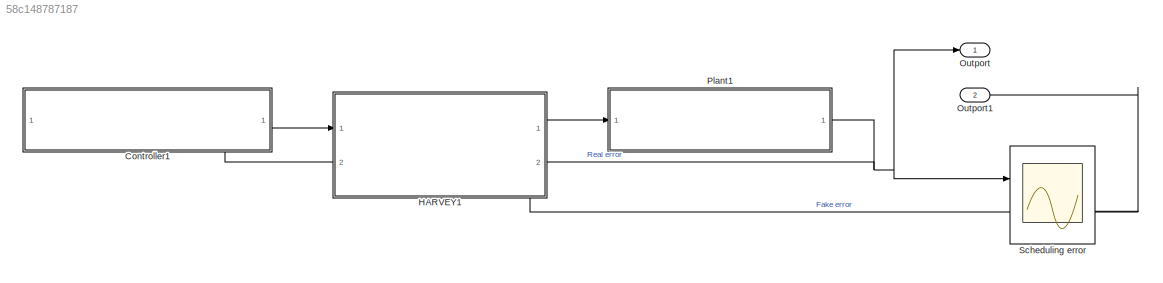
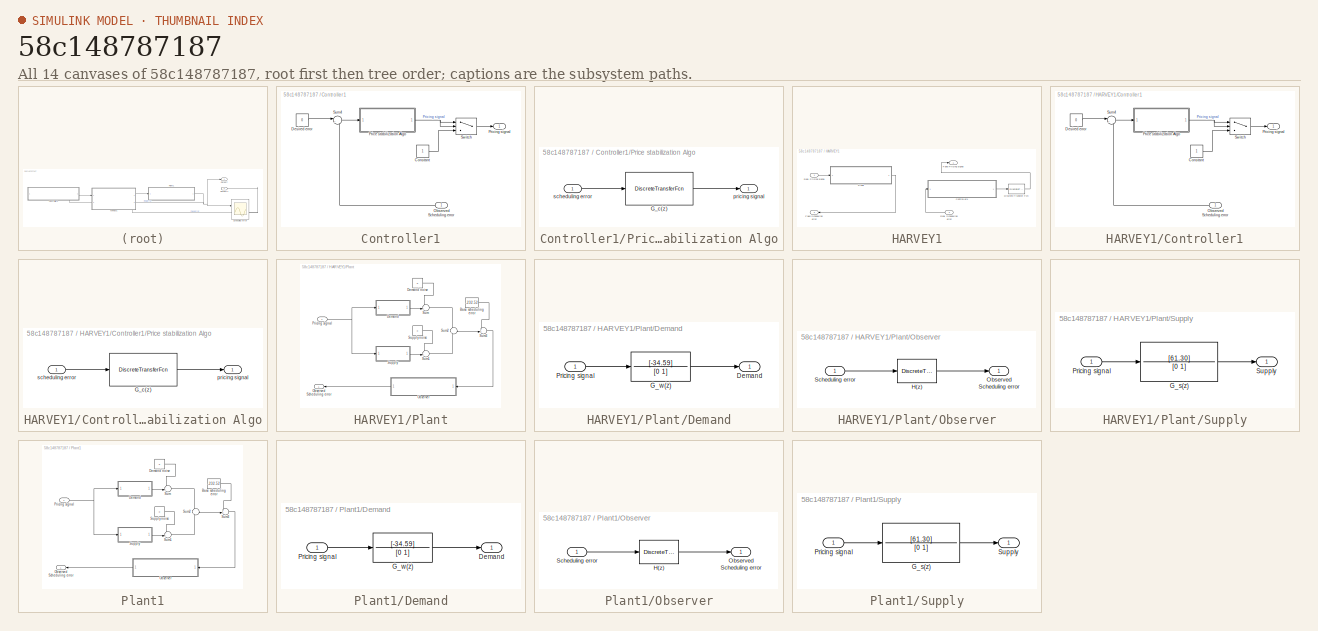
[diagram: thumbnail index - all 14 canvases of the model, root first then tree order]
MODEL slx_58c148787187
KIND model
CONFIG AbsTol = auto
CONFIG EnableMultiTasking = off
CONFIG FixedStep = 0.001
CONFIG MaxStep = auto
CONFIG MinStep = auto
CONFIG RelTol = 1e-3
CONFIG SampleTimeConstraint = Unconstrained
CONFIG SolverName = ode5
CONFIG StartTime = 0.0
CONFIG StopTime = 1
BLOCK [SubSystem] Controller1
  Ports = [1, 1]
  RequestExecContextInheritance = off
BLOCK [Constant] Controller1/Constant
BLOCK [Constant] Controller1/Desired error
  Value = 0
BLOCK [Inport] Controller1/Observed Scheduling error
BLOCK [SubSystem] Controller1/Price stabilization Algo
  Ports = [1, 1]
  RequestExecContextInheritance = off
BLOCK [DiscreteTransferFcn] Controller1/Price stabilization Algo/G_c(z)
  Denominator = [1 -1]
  InputPortMap = u0
  Numerator = [0.0188 0]
  Ports = [1, 1]
BLOCK [Outport] Controller1/Price stabilization Algo/pricing signal
BLOCK [Inport] Controller1/Price stabilization Algo/scheduling error
BLOCK [Outport] Controller1/Pricing signal
BLOCK [Sum] Controller1/Sum4
  Inputs = |+-
  Ports = [2, 1]
BLOCK [Switch] Controller1/Switch
  Criteria = u2 > Threshold
  InputSameDT = off
  SaturateOnIntegerOverflow = off
  Threshold = 1
BLOCK [SubSystem] HARVEY1
  PortSchema = {"entries":[{"content":{"sides":[{"content":{"connectorIds":["In1","Out2"]},"type":"ConnectorPlacement.EquallySpacedRectSide","uuid":"a539da20-d974-4e5f-b08d-2d7e07e26864"},{"content":{"connectorIds":["Out1","In2"],"side":"RIGHT"},"type":"ConnectorPlacement.EquallySpacedRectSide","uuid":"9eef7b98-1a08-4c57-94a1-c2fb8561f6b7"},{"content":{"connectorIds":[],"side":"TOP"},"type":"ConnectorPlacement.E...<+397ch>
  Ports = [2, 2]
  RequestExecContextInheritance = off
BLOCK [SubSystem] HARVEY1/Controller1
  Ports = [1, 1]
  RequestExecContextInheritance = off
BLOCK [Constant] HARVEY1/Controller1/Constant
BLOCK [Constant] HARVEY1/Controller1/Desired error
  Value = 0
BLOCK [Inport] HARVEY1/Controller1/Observed Scheduling error
BLOCK [SubSystem] HARVEY1/Controller1/Price stabilization Algo
  Ports = [1, 1]
  RequestExecContextInheritance = off
BLOCK [DiscreteTransferFcn] HARVEY1/Controller1/Price stabilization Algo/G_c(z)
  Denominator = [1 -1]
  InputPortMap = u0
  Numerator = [0.0188 0]
  Ports = [1, 1]
BLOCK [Outport] HARVEY1/Controller1/Price stabilization Algo/pricing signal
BLOCK [Inport] HARVEY1/Controller1/Price stabilization Algo/scheduling error
BLOCK [Outport] HARVEY1/Controller1/Pricing signal
BLOCK [Sum] HARVEY1/Controller1/Sum4
  Inputs = |+-
  Ports = [2, 1]
BLOCK [Switch] HARVEY1/Controller1/Switch
  Criteria = u2 > Threshold
  InputSameDT = off
  SaturateOnIntegerOverflow = off
  Threshold = 1
BLOCK [DiscreteTransferFcn] HARVEY1/Discrete Transfer Fcn
  Denominator = [1 0]
  InputPortMap = u0
  Ports = [1, 1]
BLOCK [Outport] HARVEY1/Fake Pricing signal
  NameLocation = right
BLOCK [Outport] HARVEY1/Fake Scheduling error
  NameLocation = top
  Port = 2
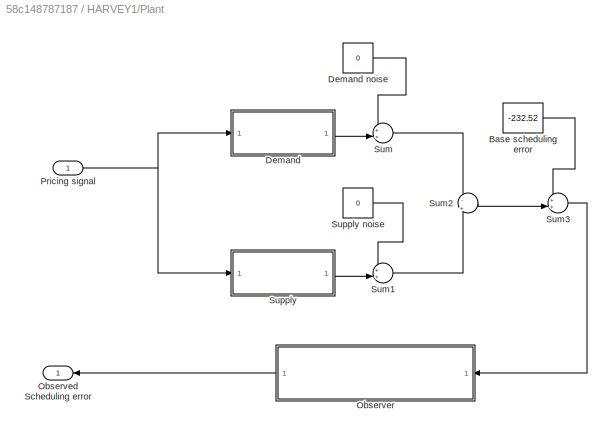
BLOCK [SubSystem] HARVEY1/Plant
  Ports = [1, 1]
  RequestExecContextInheritance = off
BLOCK [Constant] HARVEY1/Plant/Base scheduling error
  Value = -232.52
BLOCK [SubSystem] HARVEY1/Plant/Demand
  Ports = [1, 1]
  RequestExecContextInheritance = off
BLOCK [Constant] HARVEY1/Plant/Demand noise
  Value = 0
BLOCK [Outport] HARVEY1/Plant/Demand/Demand
BLOCK [TransferFcn] HARVEY1/Plant/Demand/G_w(z)
  Denominator = [0 1]
  Numerator = [-34.59]
BLOCK [Inport] HARVEY1/Plant/Demand/Pricing signal
BLOCK [Outport] HARVEY1/Plant/Observed Scheduling error
BLOCK [SubSystem] HARVEY1/Plant/Observer
  NameLocation = top
  Ports = [1, 1]
  RequestExecContextInheritance = off
BLOCK [DiscreteTransferFcn] HARVEY1/Plant/Observer/H(z)
  Denominator = [1 0]
  InputPortMap = u0
  Ports = [1, 1]
BLOCK [Outport] HARVEY1/Plant/Observer/Observed Scheduling error
BLOCK [Inport] HARVEY1/Plant/Observer/Scheduling error
BLOCK [Inport] HARVEY1/Plant/Pricing signal
BLOCK [Sum] HARVEY1/Plant/Sum
  Inputs = ++|
  Ports = [2, 1]
BLOCK [Sum] HARVEY1/Plant/Sum1
  Inputs = ++|
  Ports = [2, 1]
BLOCK [Sum] HARVEY1/Plant/Sum2
  Inputs = -|+
  Ports = [2, 1]
BLOCK [Sum] HARVEY1/Plant/Sum3
  Inputs = ++|
  Ports = [2, 1]
BLOCK [SubSystem] HARVEY1/Plant/Supply
  Ports = [1, 1]
  RequestExecContextInheritance = off
BLOCK [Constant] HARVEY1/Plant/Supply noise
  Value = 0
BLOCK [TransferFcn] HARVEY1/Plant/Supply/G_s(z)
  Denominator = [0 1]
  Numerator = [61.30]
BLOCK [Inport] HARVEY1/Plant/Supply/Pricing signal
BLOCK [Outport] HARVEY1/Plant/Supply/Supply
BLOCK [Inport] HARVEY1/Real Pricing signal
BLOCK [Inport] HARVEY1/Real Scheduling error
  NameLocation = right
  Port = 2
BLOCK [Outport] Outport
BLOCK [Outport] Outport1
  Port = 2
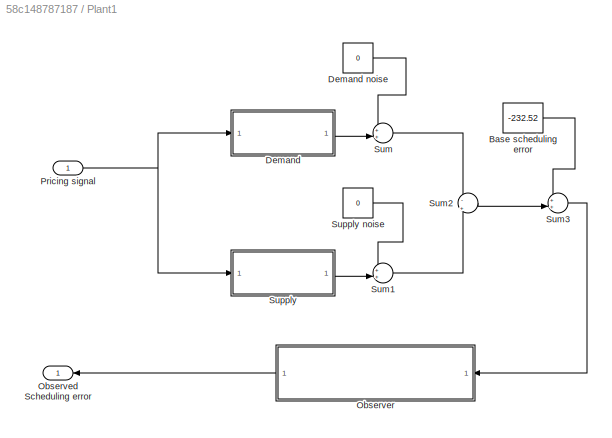
BLOCK [SubSystem] Plant1
  Ports = [1, 1]
  RequestExecContextInheritance = off
BLOCK [Constant] Plant1/Base scheduling error
  Value = -232.52
BLOCK [SubSystem] Plant1/Demand
  Ports = [1, 1]
  RequestExecContextInheritance = off
BLOCK [Constant] Plant1/Demand noise
  Value = 0
BLOCK [Outport] Plant1/Demand/Demand
BLOCK [TransferFcn] Plant1/Demand/G_w(z)
  Denominator = [0 1]
  Numerator = [-34.59]
BLOCK [Inport] Plant1/Demand/Pricing signal
BLOCK [Outport] Plant1/Observed Scheduling error
BLOCK [SubSystem] Plant1/Observer
  NameLocation = top
  Ports = [1, 1]
  RequestExecContextInheritance = off
BLOCK [DiscreteTransferFcn] Plant1/Observer/H(z)
  Denominator = [1 0]
  InputPortMap = u0
  Ports = [1, 1]
BLOCK [Outport] Plant1/Observer/Observed Scheduling error
BLOCK [Inport] Plant1/Observer/Scheduling error
BLOCK [Inport] Plant1/Pricing signal
BLOCK [Sum] Plant1/Sum
  Inputs = ++|
  Ports = [2, 1]
BLOCK [Sum] Plant1/Sum1
  Inputs = ++|
  Ports = [2, 1]
BLOCK [Sum] Plant1/Sum2
  Inputs = -|+
  Ports = [2, 1]
BLOCK [Sum] Plant1/Sum3
  Inputs = ++|
  Ports = [2, 1]
BLOCK [SubSystem] Plant1/Supply
  Ports = [1, 1]
  RequestExecContextInheritance = off
BLOCK [Constant] Plant1/Supply noise
  Value = 0
BLOCK [TransferFcn] Plant1/Supply/G_s(z)
  Denominator = [0 1]
  Numerator = [61.30]
BLOCK [Inport] Plant1/Supply/Pricing signal
BLOCK [Outport] Plant1/Supply/Supply
BLOCK [Scope] Scheduling error
  Floating = off
  NumInputPorts = 2
  Ports = [2]
  ScopeSpecificationString = Simulink.scopes.TimeScopeBlockCfg('CurrentConfiguration', extmgr.ConfigurationSet(extmgr.Configuration('Core','General UI',true),extmgr.Configuration('Core','Source UI',true),extmgr.Configuration('Sources','WiredSimulink',true),extmgr.Configuration('Visuals','Time Domain',true,'SerializedDisplays',{struct('MinYLimReal','-315.70481','MaxYLimReal','516.14333','YLabelReal','','MinYLimMag',' 0.00000',...<+2133ch>
LINE Controller1/Constant:1 -> Controller1/Switch:3
LINE Controller1/Desired error:1 -> Controller1/Sum4:1
LINE Controller1/Observed Scheduling error:1 -> Controller1/Sum4:2
LINE Controller1/Price stabilization Algo/G_c(z):1 -> Controller1/Price stabilization Algo/pricing signal:1
LINE Controller1/Price stabilization Algo/scheduling error:1 -> Controller1/Price stabilization Algo/G_c(z):1
NET Controller1/Price stabilization Algo:1 -> Controller1/Switch:1, Controller1/Switch:2
LINE Controller1/Sum4:1 -> Controller1/Price stabilization Algo:1
LINE Controller1/Switch:1 -> Controller1/Pricing signal:1
LINE Controller1:1 -> HARVEY1:1
LINE HARVEY1/Controller1/Constant:1 -> HARVEY1/Controller1/Switch:3
LINE HARVEY1/Controller1/Desired error:1 -> HARVEY1/Controller1/Sum4:1
LINE HARVEY1/Controller1/Observed Scheduling error:1 -> HARVEY1/Controller1/Sum4:2
LINE HARVEY1/Controller1/Price stabilization Algo/G_c(z):1 -> HARVEY1/Controller1/Price stabilization Algo/pricing signal:1
LINE HARVEY1/Controller1/Price stabilization Algo/scheduling error:1 -> HARVEY1/Controller1/Price stabilization Algo/G_c(z):1
NET HARVEY1/Controller1/Price stabilization Algo:1 -> HARVEY1/Controller1/Switch:1, HARVEY1/Controller1/Switch:2
LINE HARVEY1/Controller1/Sum4:1 -> HARVEY1/Controller1/Price stabilization Algo:1
LINE HARVEY1/Controller1/Switch:1 -> HARVEY1/Controller1/Pricing signal:1
LINE HARVEY1/Controller1:1 -> HARVEY1/Discrete Transfer Fcn:1
LINE HARVEY1/Discrete Transfer Fcn:1 -> HARVEY1/Fake Pricing signal:1
LINE HARVEY1/Plant/Base scheduling error:1 -> HARVEY1/Plant/Sum3:1
LINE HARVEY1/Plant/Demand noise:1 -> HARVEY1/Plant/Sum:1
LINE HARVEY1/Plant/Demand/G_w(z):1 -> HARVEY1/Plant/Demand/Demand:1
LINE HARVEY1/Plant/Demand/Pricing signal:1 -> HARVEY1/Plant/Demand/G_w(z):1
LINE HARVEY1/Plant/Demand:1 -> HARVEY1/Plant/Sum:2
LINE HARVEY1/Plant/Observer/H(z):1 -> HARVEY1/Plant/Observer/Observed Scheduling error:1
LINE HARVEY1/Plant/Observer/Scheduling error:1 -> HARVEY1/Plant/Observer/H(z):1
LINE HARVEY1/Plant/Observer:1 -> HARVEY1/Plant/Observed Scheduling error:1
NET HARVEY1/Plant/Pricing signal:1 -> HARVEY1/Plant/Demand:1, HARVEY1/Plant/Supply:1
LINE HARVEY1/Plant/Sum1:1 -> HARVEY1/Plant/Sum2:2
LINE HARVEY1/Plant/Sum2:1 -> HARVEY1/Plant/Sum3:2
LINE HARVEY1/Plant/Sum3:1 -> HARVEY1/Plant/Observer:1
LINE HARVEY1/Plant/Sum:1 -> HARVEY1/Plant/Sum2:1
LINE HARVEY1/Plant/Supply noise:1 -> HARVEY1/Plant/Sum1:1
LINE HARVEY1/Plant/Supply/G_s(z):1 -> HARVEY1/Plant/Supply/Supply:1
LINE HARVEY1/Plant/Supply/Pricing signal:1 -> HARVEY1/Plant/Supply/G_s(z):1
LINE HARVEY1/Plant/Supply:1 -> HARVEY1/Plant/Sum1:2
LINE HARVEY1/Plant:1 -> HARVEY1/Fake Scheduling error:1
LINE HARVEY1/Real Pricing signal:1 -> HARVEY1/Plant:1
LINE HARVEY1/Real Scheduling error:1 -> HARVEY1/Controller1:1
LINE HARVEY1:1 -> Plant1:1
NET HARVEY1:2 -> Controller1:1, Outport1:1, Scheduling error:2
LINE Plant1/Base scheduling error:1 -> Plant1/Sum3:1
LINE Plant1/Demand noise:1 -> Plant1/Sum:1
LINE Plant1/Demand/G_w(z):1 -> Plant1/Demand/Demand:1
LINE Plant1/Demand/Pricing signal:1 -> Plant1/Demand/G_w(z):1
LINE Plant1/Demand:1 -> Plant1/Sum:2
LINE Plant1/Observer/H(z):1 -> Plant1/Observer/Observed Scheduling error:1
LINE Plant1/Observer/Scheduling error:1 -> Plant1/Observer/H(z):1
LINE Plant1/Observer:1 -> Plant1/Observed Scheduling error:1
NET Plant1/Pricing signal:1 -> Plant1/Demand:1, Plant1/Supply:1
LINE Plant1/Sum1:1 -> Plant1/Sum2:2
LINE Plant1/Sum2:1 -> Plant1/Sum3:2
LINE Plant1/Sum3:1 -> Plant1/Observer:1
LINE Plant1/Sum:1 -> Plant1/Sum2:1
LINE Plant1/Supply noise:1 -> Plant1/Sum1:1
LINE Plant1/Supply/G_s(z):1 -> Plant1/Supply/Supply:1
LINE Plant1/Supply/Pricing signal:1 -> Plant1/Supply/G_s(z):1
LINE Plant1/Supply:1 -> Plant1/Sum1:2
NET Plant1:1 -> HARVEY1:2, Outport:1, Scheduling error:1
note: NET lines group one-source signal fan-out (src -> all destinations, sorted); 1:1 wires keep LINE
